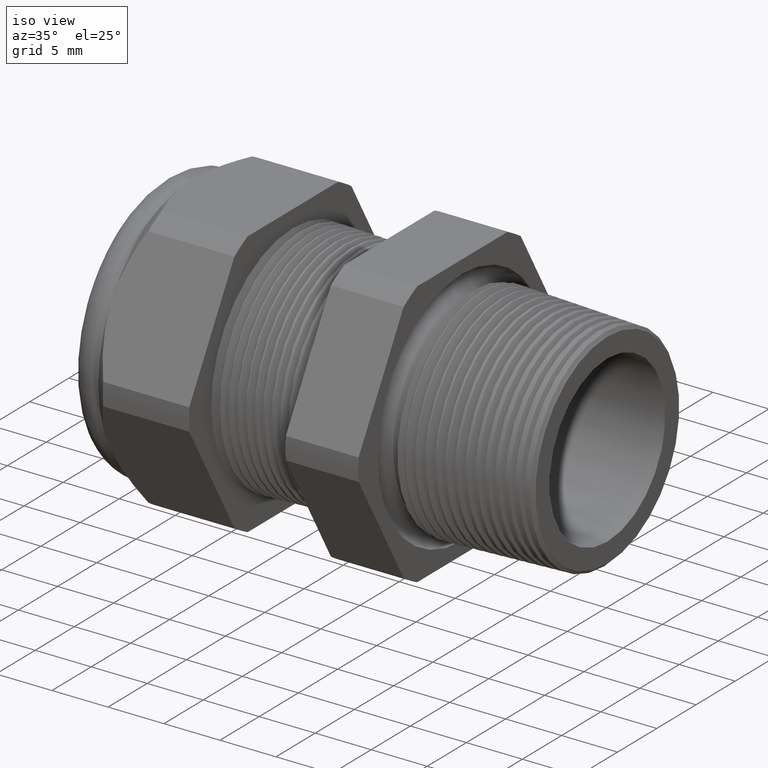
[diagram: clean part render]
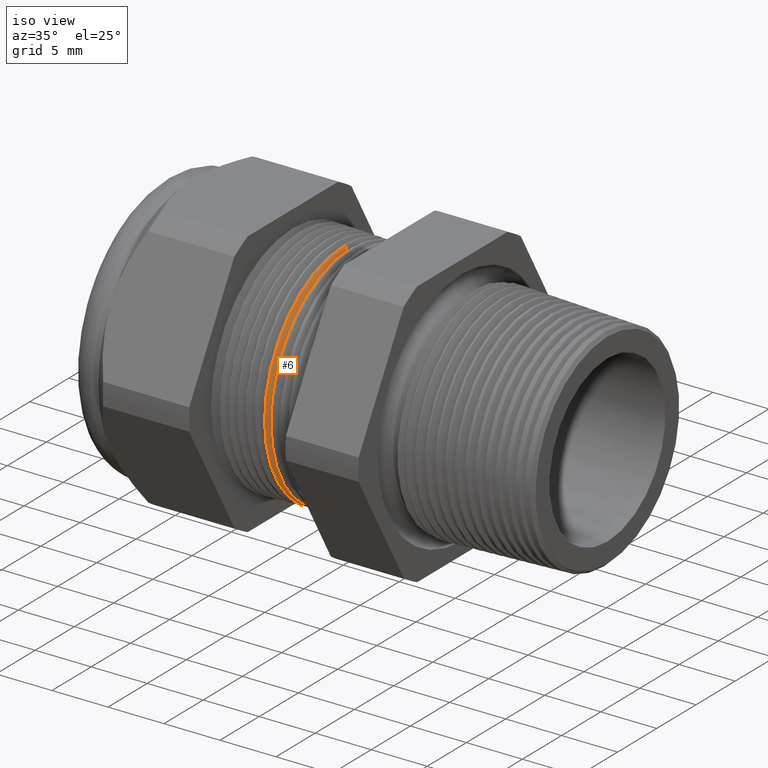
[diagram: same view with one face highlighted and labeled with its STEP entity id]
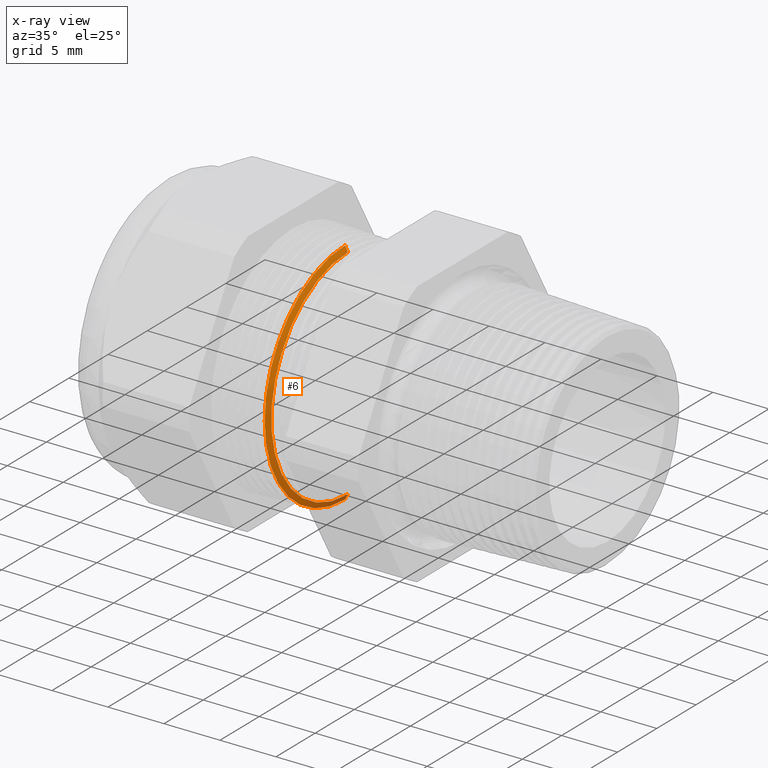
[diagram: x-ray of the same camera — body ghosted, the highlighted face saturated]
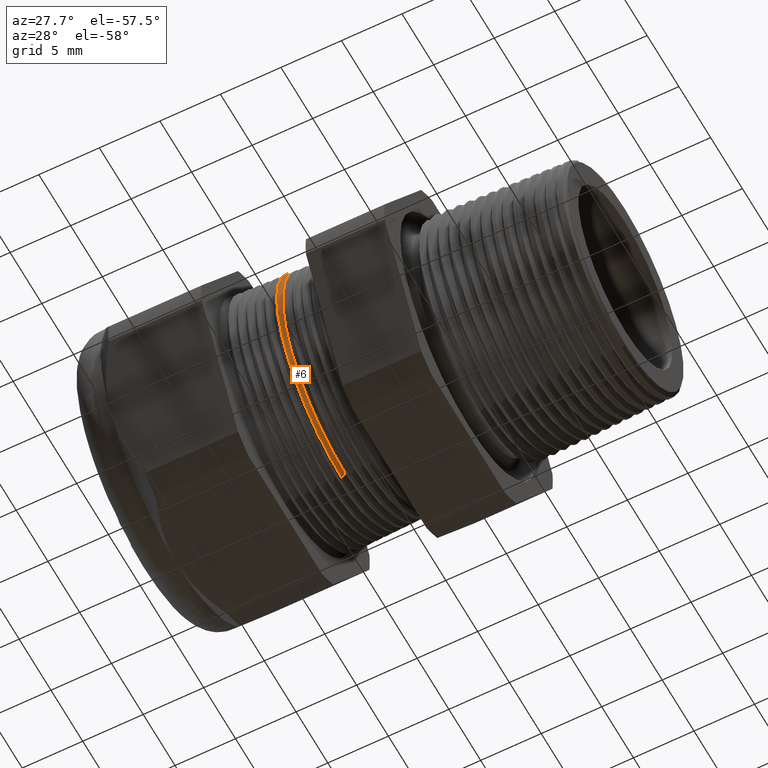
[diagram: same view with one face highlighted and labeled with its STEP entity id]
A machine part, iso view. The second image highlights one B-rep face of the part: STEP entity #6.
The next image is the same camera in x-ray: the body ghosted, the highlighted face saturated — about 9% of this face is hidden behind the body in this view.
A second angle (auxiliary view) of the same face is appended — the face is thin or edge-on in the first view.
In plain terms, the highlighted conical surface has half-angle 62 deg.
Its self-contained STEP definition (entity closure, byte-faithful):
#1 = EDGE_LOOP ( 'NONE', ( #4, #3, #106, #102 ) ) ;
#3 = ORIENTED_EDGE ( 'NONE', *, *, #5, .F. ) ;
#4 = ORIENTED_EDGE ( 'NONE', *, *, #665, .F. ) ;
#5 = EDGE_CURVE ( 'NONE', #682, #681, #1636, .T. ) ;
#6 = ADVANCED_FACE ( 'NONE', ( #1631 ), #1630, .T. ) ;
#102 = ORIENTED_EDGE ( 'NONE', *, *, #1227, .T. ) ;
#106 = ORIENTED_EDGE ( 'NONE', *, *, #671, .T. ) ;
#665 = EDGE_CURVE ( 'NONE', #681, #666, #2772, .T. ) ;
#666 = VERTEX_POINT ( 'NONE', #2830 ) ;
#669 = VERTEX_POINT ( 'NONE', #2824 ) ;
#671 = EDGE_CURVE ( 'NONE', #682, #669, #2823, .T. ) ;
#681 = VERTEX_POINT ( 'NONE', #2861 ) ;
#682 = VERTEX_POINT ( 'NONE', #2860 ) ;
#1227 = EDGE_CURVE ( 'NONE', #669, #666, #3893, .T. ) ;
#1625 = DIRECTION ( 'NONE',  ( 0.0000000000000000000, 0.0000000000000000000, 1.000000000000000000 ) ) ;
#1626 = DIRECTION ( 'NONE',  ( -1.000000000000000000, 0.0000000000000000000, 0.0000000000000000000 ) ) ;
#1627 = CARTESIAN_POINT ( 'NONE',  ( -0.7254330708661419500, 0.0000000000000000000, 0.0000000000000000000 ) ) ;
#1628 = AXIS2_PLACEMENT_3D ( 'NONE', #1627, #1626, #1625 ) ;
#1630 = CONICAL_SURFACE ( 'NONE', #1628, 0.4099999999999999800, 1.082104136236471400 ) ;
#1631 = FACE_OUTER_BOUND ( 'NONE', #1, .T. ) ;
#1632 = DIRECTION ( 'NONE',  ( 0.0000000000000000000, 0.0000000000000000000, -1.000000000000000000 ) ) ;
#1633 = DIRECTION ( 'NONE',  ( 1.000000000000000000, 0.0000000000000000000, 0.0000000000000000000 ) ) ;
#1634 = CARTESIAN_POINT ( 'NONE',  ( -0.7118805942085761900, 0.0000000000000000000, 0.0000000000000000000 ) ) ;
#1635 = AXIS2_PLACEMENT_3D ( 'NONE', #1634, #1633, #1632 ) ;
#1636 = CIRCLE ( 'NONE', #1635, 0.3845114984791284100 ) ;
#2769 = DIRECTION ( 'NONE',  ( -0.4694715627859021900, 1.081298943409537900E-016, -0.8829475928589208800 ) ) ;
#2770 = VECTOR ( 'NONE', #2769, 39.37007874015748100 ) ;
#2771 = CARTESIAN_POINT ( 'NONE',  ( -0.7254330708661419500, 5.021051876504148100E-017, -0.4099999999999999800 ) ) ;
#2772 = LINE ( 'NONE', #2771, #2770 ) ;
#2820 = DIRECTION ( 'NONE',  ( -0.4694715627859021900, 0.0000000000000000000, 0.8829475928589208800 ) ) ;
#2821 = VECTOR ( 'NONE', #2820, 39.37007874015748100 ) ;
#2822 = CARTESIAN_POINT ( 'NONE',  ( -0.7254330708661419500, 0.0000000000000000000, 0.4099999999999999800 ) ) ;
#2823 = LINE ( 'NONE', #2822, #2821 ) ;
#2824 = CARTESIAN_POINT ( 'NONE',  ( -0.7220276536423082500, 0.0000000000000000000, 0.4035953417015901200 ) ) ;
#2830 = CARTESIAN_POINT ( 'NONE',  ( -0.7220276536423082500, 4.944276467541161000E-017, -0.4035953417015901200 ) ) ;
#2860 = CARTESIAN_POINT ( 'NONE',  ( -0.7118805942085761900, 0.0000000000000000000, 0.3845114984791284100 ) ) ;
#2861 = CARTESIAN_POINT ( 'NONE',  ( -0.7118805942085761900, 4.825762596067258200E-017, -0.3845114984791284100 ) ) ;
#3890 = DIRECTION ( 'NONE',  ( 0.0000000000000000000, 0.0000000000000000000, 1.000000000000000000 ) ) ;
#3891 = DIRECTION ( 'NONE',  ( 1.000000000000000000, 0.0000000000000000000, 0.0000000000000000000 ) ) ;
#3892 = AXIS2_PLACEMENT_3D ( 'NONE', #3897, #3891, #3890 ) ;
#3893 = CIRCLE ( 'NONE', #3892, 0.4035953417015901200 ) ;
#3897 = CARTESIAN_POINT ( 'NONE',  ( -0.7220276536423082500, 0.0000000000000000000, 0.0000000000000000000 ) ) ;